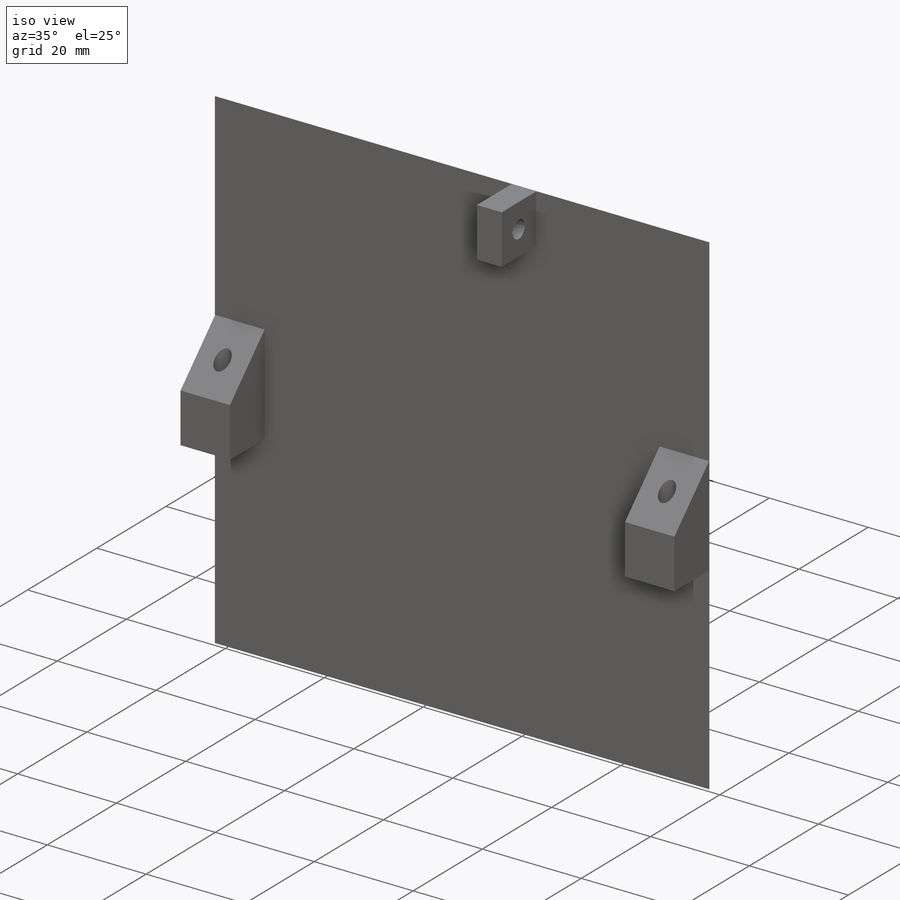
[diagram: iso view]
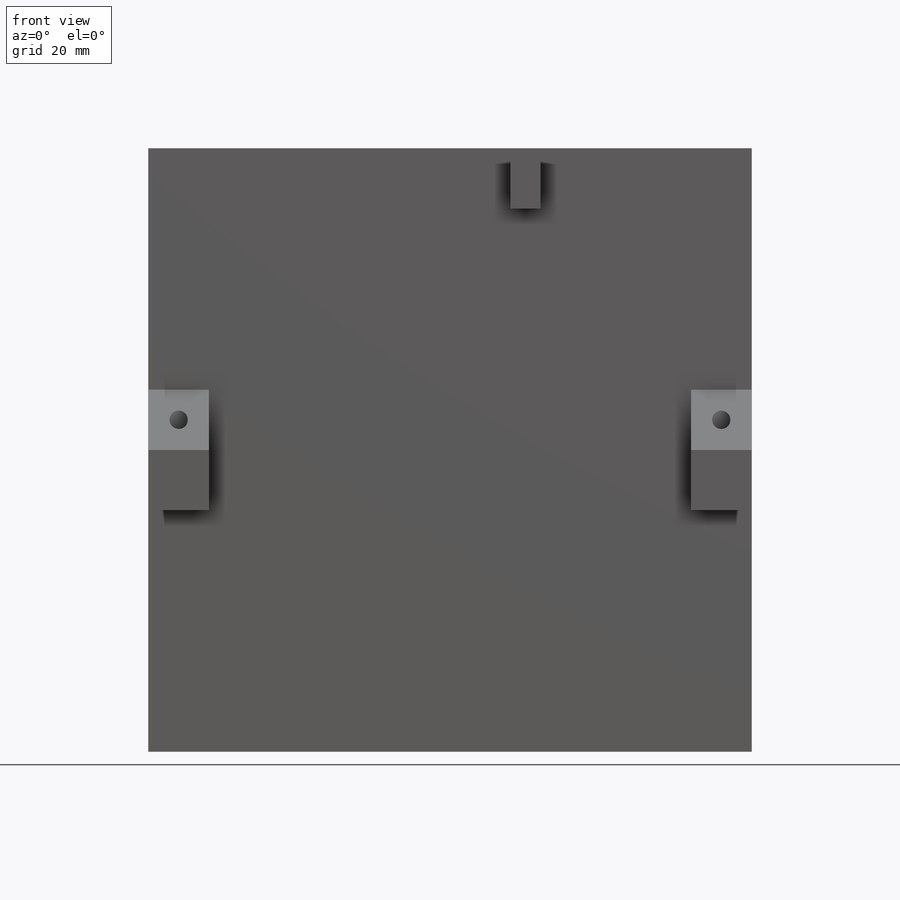
[diagram: front view]
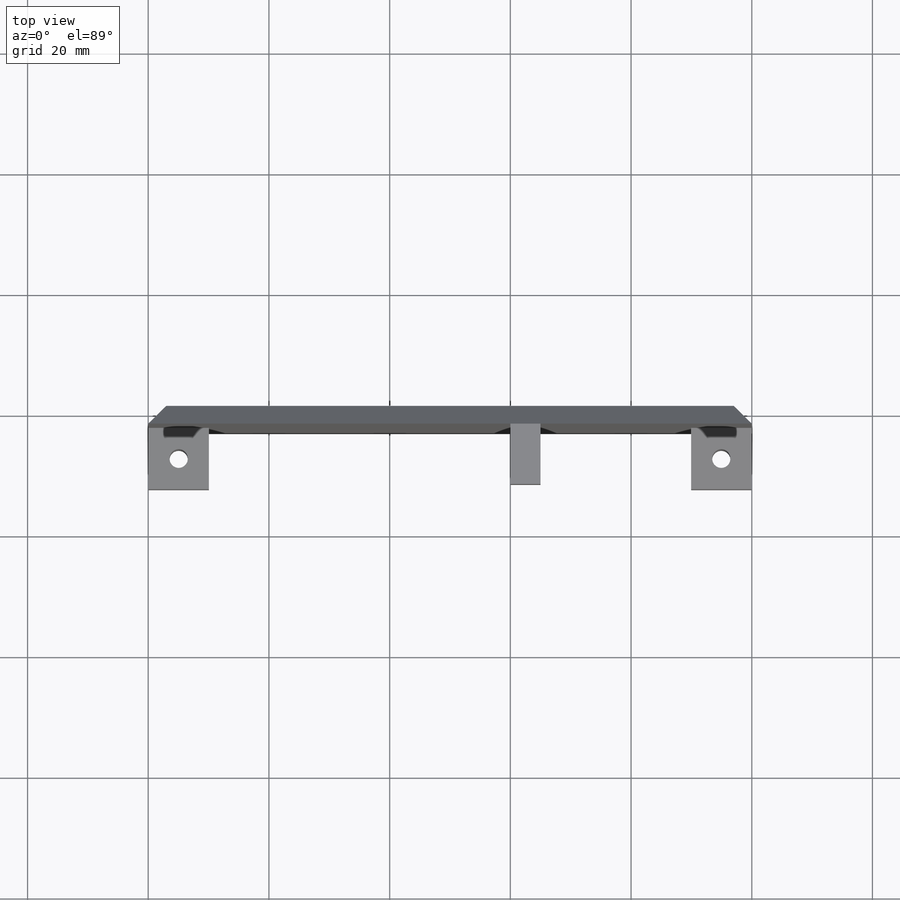
[diagram: top view]
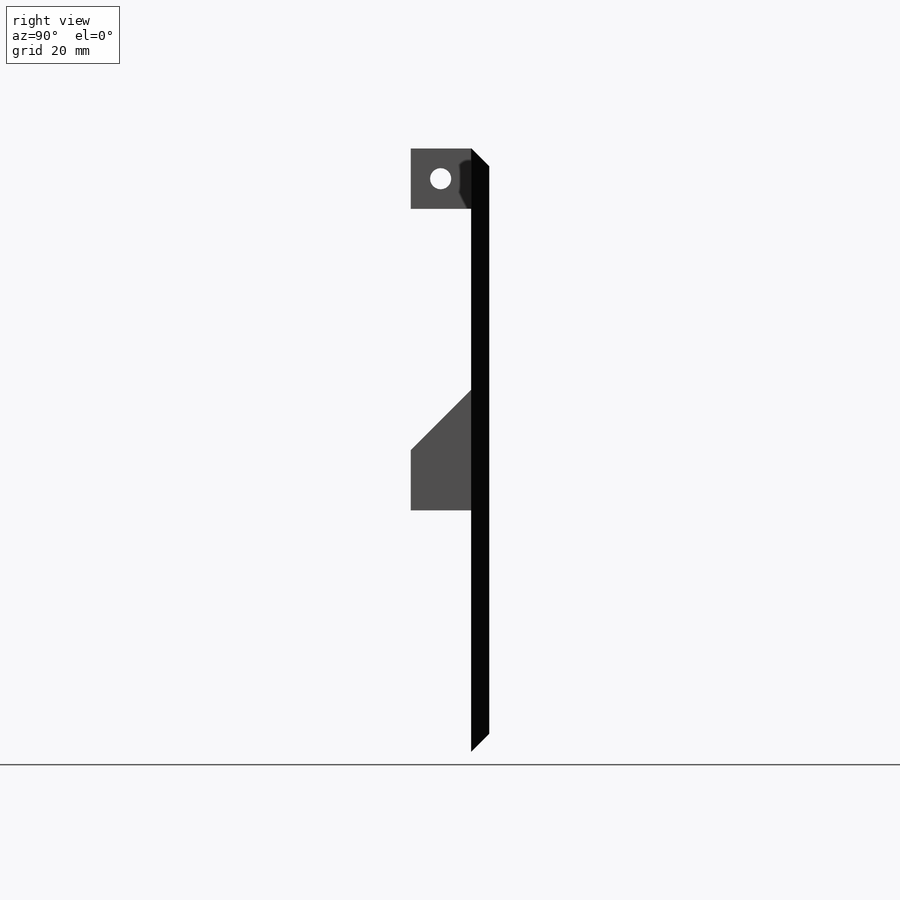
[diagram: right view]
SOLIDWORKS PART (.sldprt)
format: sldprt  version: not decoded by parser v0  size: 396,288 bytes
history: native  units: mm
features: sketch x5, plane x3, extrude x3, chamfer x2, cut_extrude x2, material x1 (+9 scaffold rows collapsed)
feature tree (25):
  scaffold x9  (default folders/planes/origin — collapsed)
  material  "Matériau <non spécifié>"
  plane  "Plan de face"
  plane  "Plan de dessus"
  plane  "Plan de droite"
  sketch  "Esquisse1"  dims[D1=100.0mm D2=100.0mm]
  extrude  "Boss.-Extru.1"  Depth=3mm
  sketch  "Esquisse2"  dims[D1=0.05mm D2=10.0mm D3=40.0mm D4=20.0mm D5=20.0mm D6=10.0mm D7=0.05mm D8=40.0mm]
  extrude  "Boss.-Extru.2"  Depth=10mm
  chamfer  "Chanfrein1"  Distance=10mm Angle=45deg
  sketch  "Esquisse3"  dims[c1.D1=3.05mm c1.D2=3.05mm c1.D3=3.05mm c1.D4=3.05mm c1.D5=3.05mm c1.D6=3.05mm c2.D2=~5.003772mm c2.D3=5.0mm c2.D5=5.0mm c2.D6=5.0mm]
  cut_extrude  "Enlèv. mat.-Extru.1"  [1 undecoded]
  chamfer  "Chanfrein2"  Distance=3mm Angle=45deg
  sketch  "Esquisse4"  dims[D1=5.0mm D2=10.0mm D3=0.05mm D4=40.0mm]
  extrude  "Boss.-Extru.3"  Depth=10mm
  sketch  "Esquisse5"  dims[c1.D1=3.5mm c1.D2=5.05mm c1.D3=~5.970123mm c2.D2=5.05mm c2.D3=5.0mm]
  cut_extrude  "Enlèv. mat.-Extru.2"  Depth=10mm
decode coverage: 11 of 12 modeling features carry decoded parameters
note: ~ marks probable driven/reference dimensions
note: 1 parameter value undecoded
note: suppression state not decoded; provenance and decode notes live in map.json
